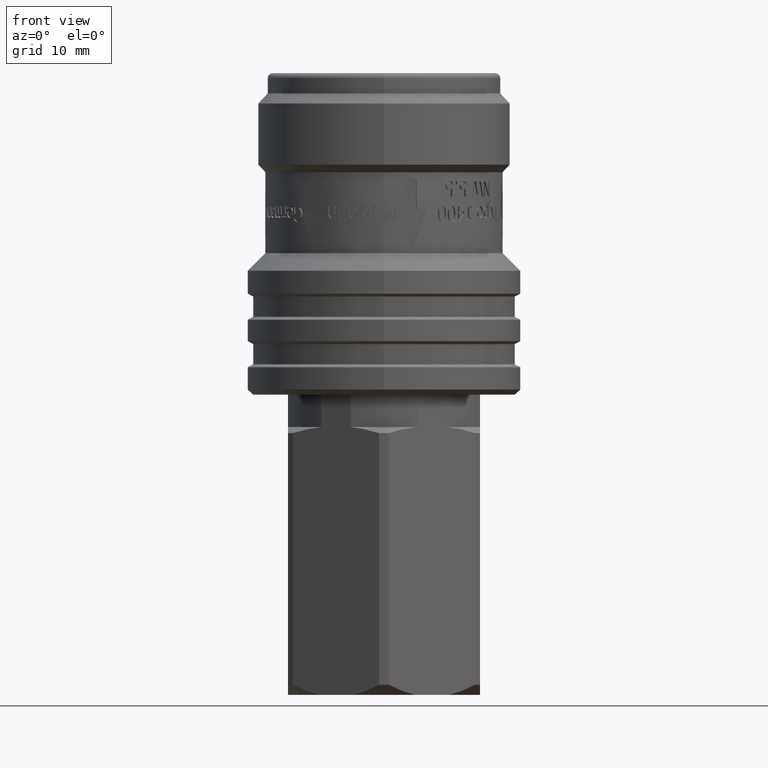
[diagram: clean part render]
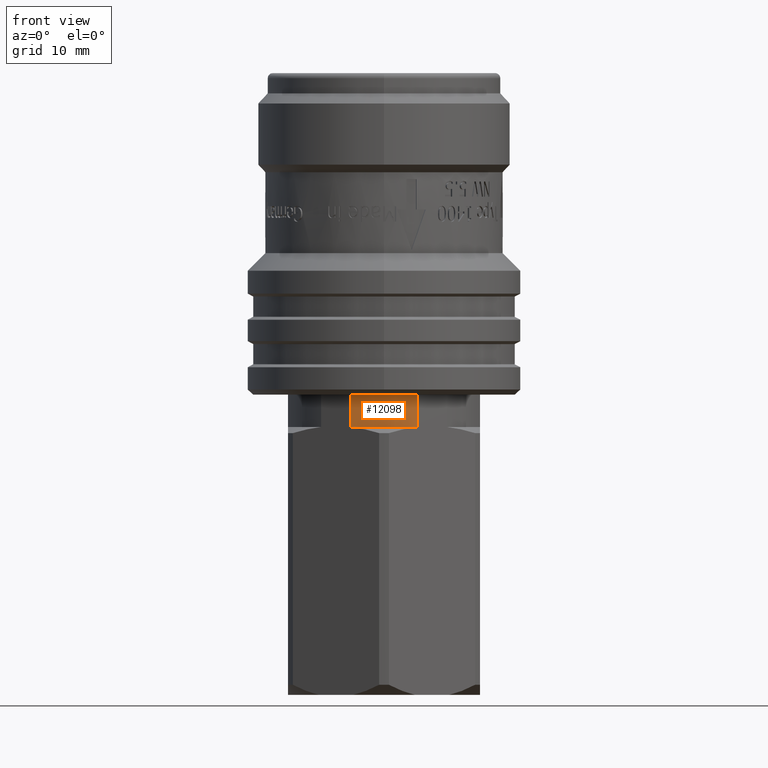
[diagram: same view with one face highlighted and labeled with its STEP entity id]
A machine part, front view. The second image highlights one B-rep face of the part: STEP entity #12098.
In plain terms, the highlighted cylindrical surface (partial cylindrical patch) has radius 9.65 mm, axis along (0, 0, -1).
Its self-contained STEP definition (entity closure, byte-faithful):
#1195=CYLINDRICAL_SURFACE($,#12804,9.65);
#1290=LINE($,#15425,#2063);
#1308=LINE($,#15523,#2081);
#2063=VECTOR($,#13386,3.20000000000003);
#2081=VECTOR($,#13450,3.20000000000003);
#2860=FACE_OUTER_BOUND($,#3524,.T.);
#3524=EDGE_LOOP($,(#7632,#7633,#7634,#7635));
#4271=CIRCLE($,#12801,9.65);
#4273=CIRCLE($,#12805,9.65);
#4473=VERTEX_POINT($,#15398);
#4482=VERTEX_POINT($,#15421);
#4514=VERTEX_POINT($,#15520);
#4515=VERTEX_POINT($,#15522);
#5693=EDGE_CURVE($,#4473,#4482,#1290,.T.);
#5733=EDGE_CURVE($,#4515,#4514,#1308,.T.);
#5763=EDGE_CURVE($,#4515,#4482,#4271,.T.);
#5766=EDGE_CURVE($,#4514,#4473,#4273,.T.);
#7632=ORIENTED_EDGE($,*,*,#5766,.T.);
#7633=ORIENTED_EDGE($,*,*,#5693,.T.);
#7634=ORIENTED_EDGE($,*,*,#5763,.F.);
#7635=ORIENTED_EDGE($,*,*,#5733,.T.);
#12098=ADVANCED_FACE($,(#2860),#1195,.T.);
#12801=AXIS2_PLACEMENT_3D($,#15603,#13513,#13514);
#12804=AXIS2_PLACEMENT_3D($,#15608,#13520,#13521);
#12805=AXIS2_PLACEMENT_3D($,#15609,#13522,#13523);
#13386=DIRECTION($,(0.,0.,-1.));
#13450=DIRECTION($,(0.,0.,1.));
#13513=DIRECTION('center_axis',(0.,0.,-1.));
#13514=DIRECTION('ref_axis',(1.,0.,0.));
#13520=DIRECTION('center_axis',(0.,0.,-1.));
#13521=DIRECTION('ref_axis',(0.,1.,0.));
#13522=DIRECTION('center_axis',(0.,0.,-1.));
#13523=DIRECTION('ref_axis',(0.,1.,0.));
#15398=CARTESIAN_POINT('',(-3.28222106569147,-9.07466389878606,-14.05));
#15421=CARTESIAN_POINT('',(-3.28222106569147,-9.07466389878606,-17.25));
#15425=CARTESIAN_POINT($,(-3.28222106569147,-9.07466389878606,-14.5));
#15520=CARTESIAN_POINT('',(3.28222106569146,-9.07466389878607,-14.05));
#15522=CARTESIAN_POINT('',(3.28222106569146,-9.07466389878607,-17.25));
#15523=CARTESIAN_POINT($,(3.28222106569146,-9.07466389878607,-14.5));
#15603=CARTESIAN_POINT('Origin',(0.,0.,-17.25));
#15608=CARTESIAN_POINT('Origin',(0.,0.,-14.5));
#15609=CARTESIAN_POINT('Origin',(0.,0.,-14.05));